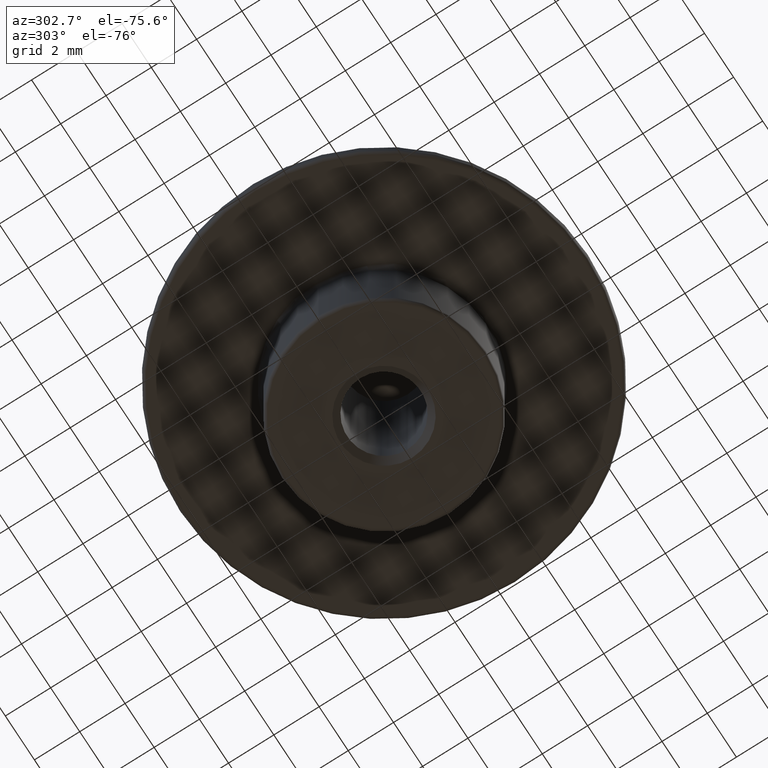
[diagram: clean part render]
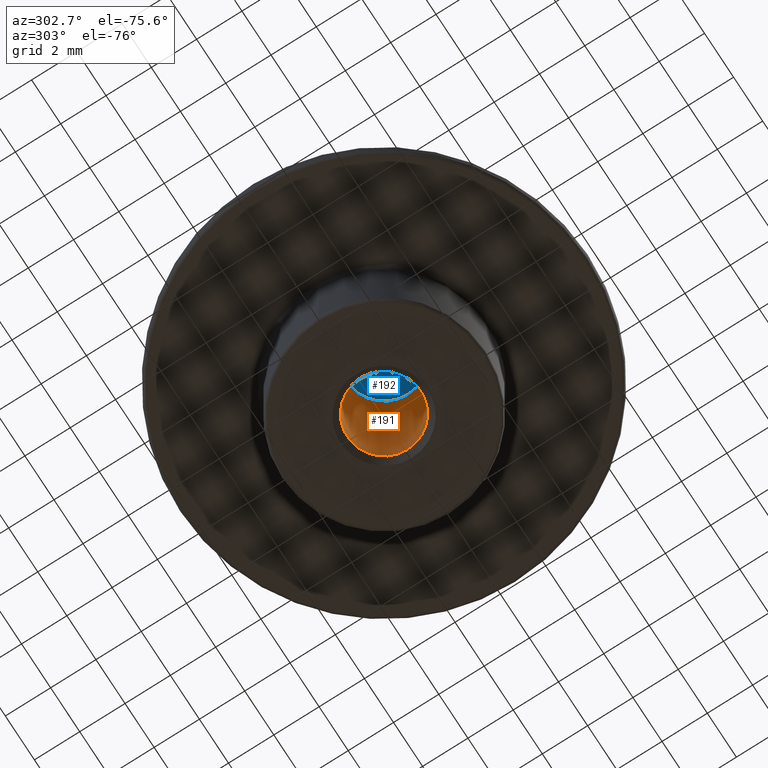
[diagram: same view with the hole feature highlighted: cylindrical wall and planar end face, labeled with their STEP entity ids]
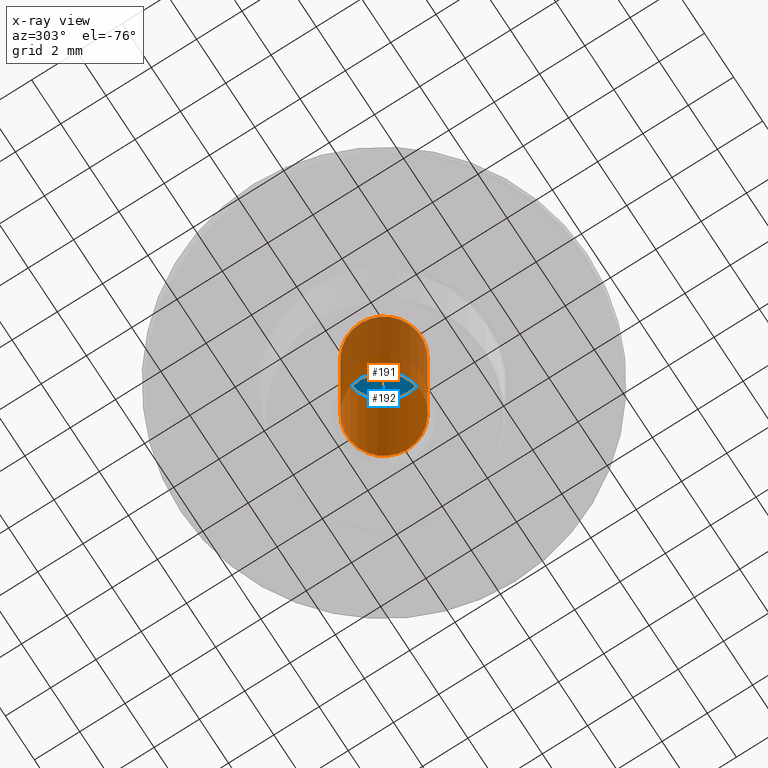
[diagram: x-ray of the same camera — body ghosted, the hole faces saturated]
A machine part, auxiliary view. The highlighted faces form one hole feature of diameter 3.242 mm: the cylindrical wall (entity #191, orange) and its adjacent planar end face (entity #192, blue) — they share a circular edge in the B-rep.
The next image is the same camera in x-ray (body ghosted, the hole faces saturated) — the bore reads through the body.
Wall:
#25=LINE('',#373,#29);
#29=VECTOR('',#314,1.621);
#32=CYLINDRICAL_SURFACE('',#243,1.621);
#43=FACE_OUTER_BOUND('',#57,.T.);
#57=EDGE_LOOP('',(#169,#170,#171,#172,#173,#174));
#77=CIRCLE('',#241,1.621);
#78=CIRCLE('',#242,1.621);
#79=CIRCLE('',#244,1.621);
#80=CIRCLE('',#245,1.621);
#95=VERTEX_POINT('',#366);
#96=VERTEX_POINT('',#368);
#97=VERTEX_POINT('',#372);
#98=VERTEX_POINT('',#374);
#120=EDGE_CURVE('',#95,#96,#77,.T.);
#121=EDGE_CURVE('',#96,#95,#78,.T.);
#122=EDGE_CURVE('',#96,#97,#25,.T.);
#123=EDGE_CURVE('',#98,#97,#79,.T.);
#124=EDGE_CURVE('',#97,#98,#80,.T.);
#169=ORIENTED_EDGE('',*,*,#120,.F.);
#170=ORIENTED_EDGE('',*,*,#121,.F.);
#171=ORIENTED_EDGE('',*,*,#122,.T.);
#172=ORIENTED_EDGE('',*,*,#123,.F.);
#173=ORIENTED_EDGE('',*,*,#124,.F.);
#174=ORIENTED_EDGE('',*,*,#122,.F.);
#191=ADVANCED_FACE('',(#43),#32,.F.);
#241=AXIS2_PLACEMENT_3D('',#369,#308,#309);
#242=AXIS2_PLACEMENT_3D('',#370,#310,#311);
#243=AXIS2_PLACEMENT_3D('',#371,#312,#313);
#244=AXIS2_PLACEMENT_3D('',#375,#315,#316);
#245=AXIS2_PLACEMENT_3D('',#376,#317,#318);
#308=DIRECTION('center_axis',(0.,0.,1.));
#309=DIRECTION('ref_axis',(1.,0.,0.));
#310=DIRECTION('center_axis',(0.,0.,1.));
#311=DIRECTION('ref_axis',(1.,0.,0.));
#312=DIRECTION('center_axis',(0.,0.,-1.));
#313=DIRECTION('ref_axis',(-1.,0.,0.));
#314=DIRECTION('',(0.,0.,1.));
#315=DIRECTION('center_axis',(0.,0.,-1.));
#316=DIRECTION('ref_axis',(-1.,0.,0.));
#317=DIRECTION('center_axis',(0.,0.,-1.));
#318=DIRECTION('ref_axis',(-1.,0.,0.));
#366=CARTESIAN_POINT('',(-1.621,-1.98515246141786E-16,2.3));
#368=CARTESIAN_POINT('',(1.621,-1.98515246141786E-16,2.3));
#369=CARTESIAN_POINT('Origin',(0.,0.,2.3));
#370=CARTESIAN_POINT('Origin',(0.,0.,2.3));
#371=CARTESIAN_POINT('Origin',(0.,0.,6.25));
#372=CARTESIAN_POINT('',(1.621,-1.98515246141786E-16,10.5));
#373=CARTESIAN_POINT('',(1.621,-1.98515246141786E-16,6.25));
#374=CARTESIAN_POINT('',(-1.621,0.,10.5));
#375=CARTESIAN_POINT('Origin',(0.,0.,10.5));
#376=CARTESIAN_POINT('Origin',(0.,0.,10.5));
End face:
#21=PLANE('',#246);
#44=FACE_OUTER_BOUND('',#58,.T.);
#58=EDGE_LOOP('',(#175,#176));
#79=CIRCLE('',#244,1.621);
#80=CIRCLE('',#245,1.621);
#97=VERTEX_POINT('',#372);
#98=VERTEX_POINT('',#374);
#123=EDGE_CURVE('',#98,#97,#79,.T.);
#124=EDGE_CURVE('',#97,#98,#80,.T.);
#175=ORIENTED_EDGE('',*,*,#123,.T.);
#176=ORIENTED_EDGE('',*,*,#124,.T.);
#192=ADVANCED_FACE('',(#44),#21,.T.);
#244=AXIS2_PLACEMENT_3D('',#375,#315,#316);
#245=AXIS2_PLACEMENT_3D('',#376,#317,#318);
#246=AXIS2_PLACEMENT_3D('',#377,#319,#320);
#315=DIRECTION('center_axis',(0.,0.,-1.));
#316=DIRECTION('ref_axis',(-1.,0.,0.));
#317=DIRECTION('center_axis',(0.,0.,-1.));
#318=DIRECTION('ref_axis',(-1.,0.,0.));
#319=DIRECTION('center_axis',(0.,0.,-1.));
#320=DIRECTION('ref_axis',(-1.,0.,0.));
#372=CARTESIAN_POINT('',(1.621,-1.98515246141786E-16,10.5));
#374=CARTESIAN_POINT('',(-1.621,0.,10.5));
#375=CARTESIAN_POINT('Origin',(0.,0.,10.5));
#376=CARTESIAN_POINT('Origin',(0.,0.,10.5));
#377=CARTESIAN_POINT('Origin',(0.,0.,10.5));